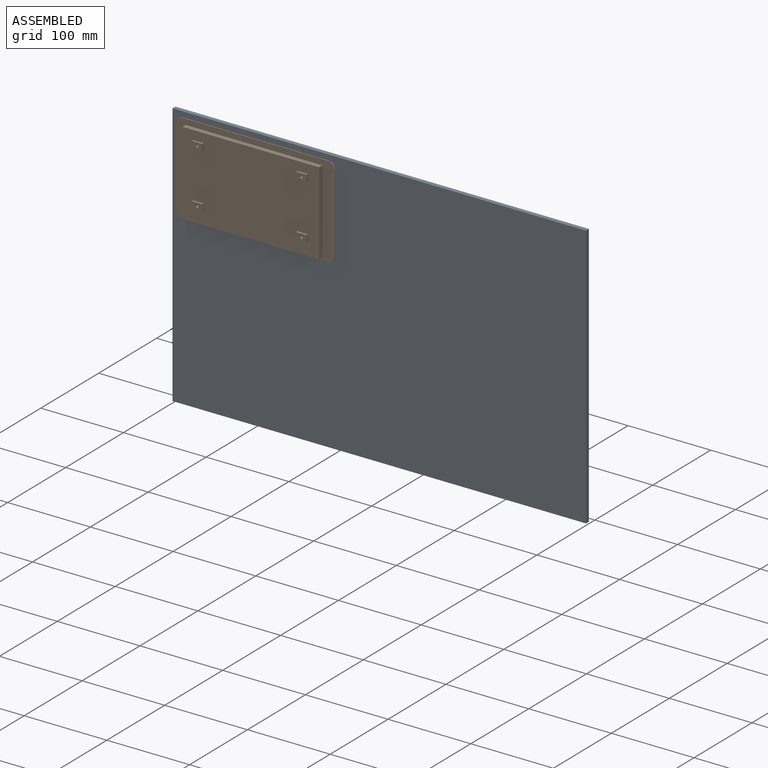
[diagram: assembled view]
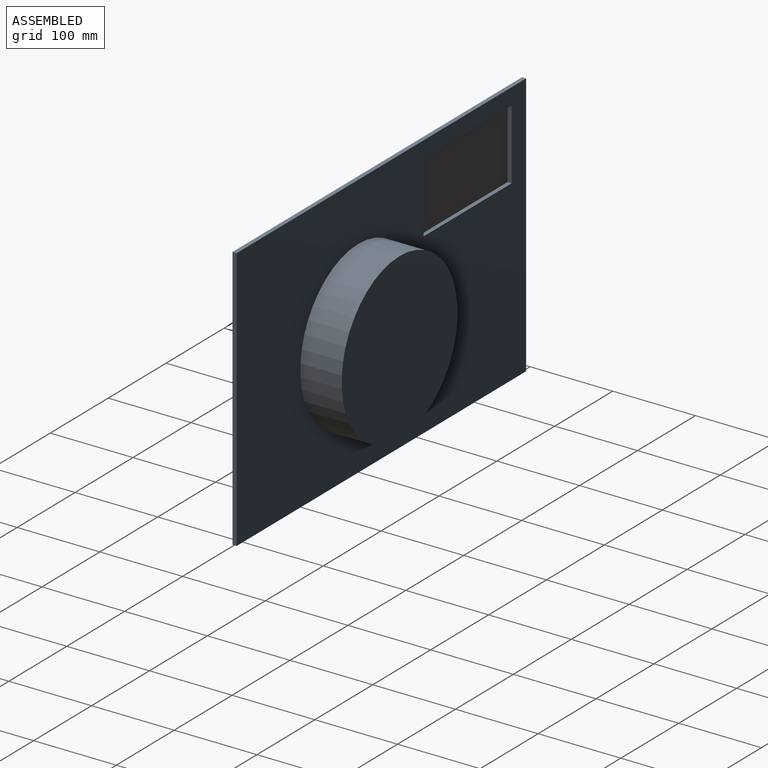
[diagram: assembled view, second angle]
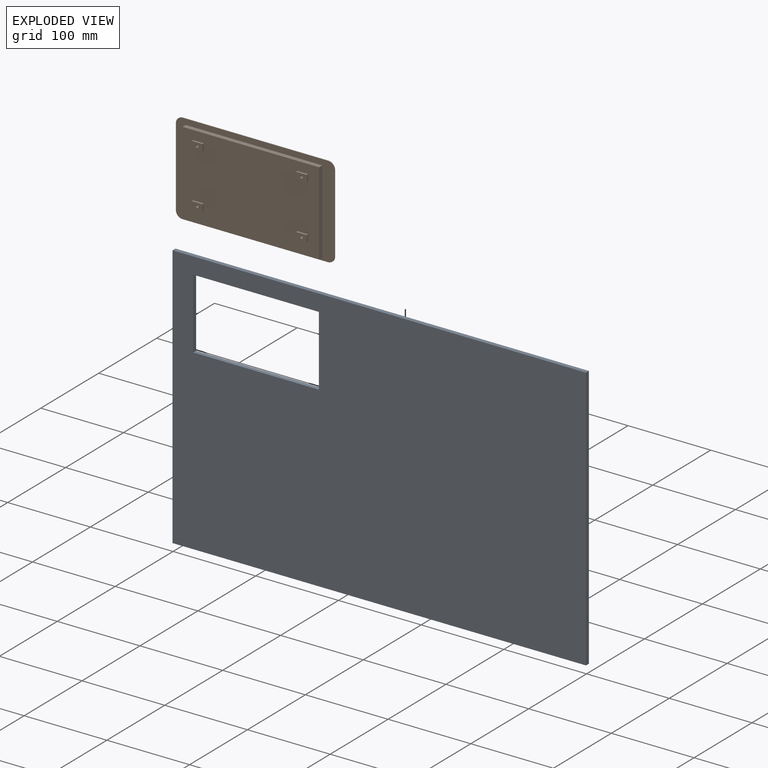
[diagram: exploded view]
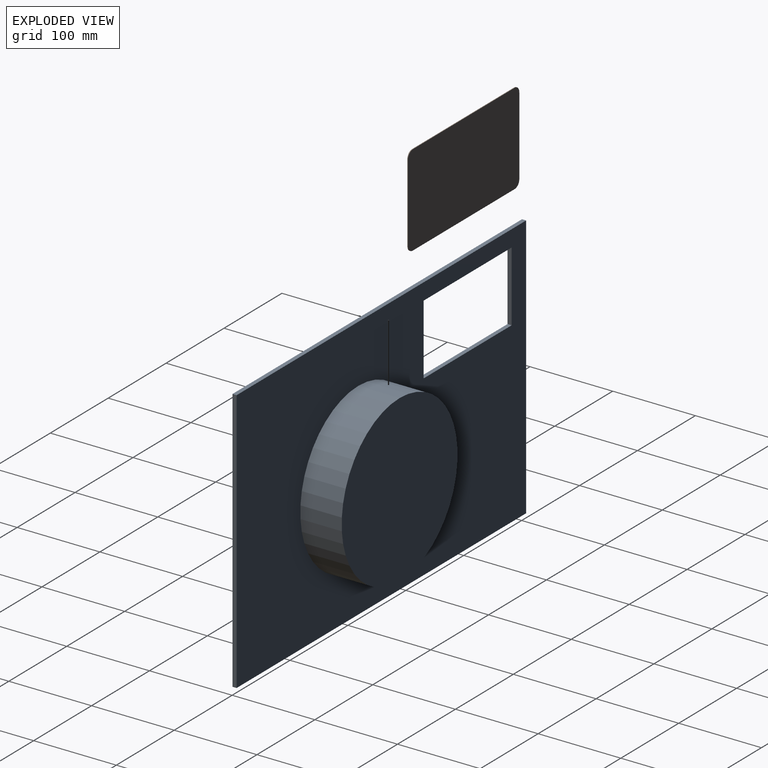
[diagram: exploded view, second angle]
ASSEMBLY  parts=2 mates=2
PART A: 12 faces, bbox 500x55x320 mm
  f0: plane 500x5mm, normal (0,0,1), area 2500mm2, adj f1,f7,f8,f9
  f1: plane 320x5mm, normal (-1,0,0), area 1600mm2, adj f0,f2,f8,f9
  f2: plane 500x5mm, normal (0,0,-1), area 2500mm2, adj f1,f7,f8,f9
  f3: plane 85x5mm, normal (1,0,0), area 425mm2, adj f4,f6,f8,f9
  f4: plane 152x5mm, normal (0,0,-1), area 760mm2, adj f3,f5,f8,f9
  f5: plane 85x5mm, normal (-1,0,0), area 425mm2, adj f4,f6,f8,f9
  f6: plane 152x5mm, normal (0,0,1), area 760mm2, adj f3,f5,f8,f9
  f7: plane 320x5mm, normal (1,0,0), area 1600mm2, adj f0,f2,f8,f9
  f8: plane 500x320mm, normal (0,-1,0), area 115664.1mm2, adj f0,f1,f2,f3,f4,f5,f6,f7
  f9: plane 500x320mm, normal (0,1,0), area 147080mm2, adj f0,f1,f2,f3,f4,f5,f6,f7
  f10: cylinder r=100mm len=200mm, axis (0,1,0), area 31415.9mm2, adj f8,f11
  f11: plane 200x200mm, normal (0,-1,0), area 31415.9mm2, adj f10
PART B: 44 faces, bbox 192x8.8x110.8 mm
  f0: plane 152.71x85.9mm, normal (0,1,0), area 13117.9mm2, adj f11
  f1: plane 165.15x100.7mm, normal (0,-1,0), area 16214.6mm2, adj f12,f13,f14,f15,f16,f17,f18,f19
  f2: plane 192x110.75mm, normal (0,-1,0), area 4578.5mm2, adj f3,f4,f5,f6,f7,f8,f9,f10
  f3: plane 94.75x0.9mm, normal (1,0,0), area 85.3mm2, adj f2,f4,f10,f11
  f4: cylinder r=8mm len=8mm, axis (0,1,0), area 11.3mm2, adj f2,f3,f5,f11
  f5: plane 176x0.9mm, normal (0,0,1), area 158.4mm2, adj f2,f4,f6,f11
  f6: cylinder r=8mm len=8mm, axis (0,1,0), area 11.3mm2, adj f2,f5,f7,f11
  f7: plane 94.75x0.9mm, normal (-1,0,0), area 85.3mm2, adj f2,f6,f8,f11
  f8: cylinder r=8mm len=8mm, axis (0,1,0), area 11.3mm2, adj f2,f7,f9,f11
  f9: plane 176x0.9mm, normal (0,0,-1), area 158.4mm2, adj f2,f8,f10,f11
  f10: cylinder r=8mm len=8mm, axis (0,1,0), area 11.3mm2, adj f2,f3,f9,f11
  f11: plane 192x110.75mm, normal (0,1,0), area 8091.2mm2, adj f0,f3,f4,f5,f6,f7,f8,f9
  f12: plane 100.7x5.5mm, normal (-1,0,0), area 553.9mm2, adj f1,f2,f13,f15
  f13: plane 165.15x5.5mm, normal (0,0,-1), area 908.3mm2, adj f1,f2,f12,f14
  f14: plane 100.7x5.5mm, normal (1,0,0), area 553.9mm2, adj f1,f2,f13,f15
  f15: plane 165.15x5.5mm, normal (0,0,1), area 908.3mm2, adj f1,f2,f12,f14
  f16: plane 8x2.4mm, normal (-1,0,0), area 19.2mm2, adj f1,f17,f19,f20
  f17: plane 13x2.4mm, normal (0,0,-1), area 31.2mm2, adj f1,f16,f18,f20
  f18: plane 8x2.4mm, normal (1,0,0), area 19.2mm2, adj f1,f17,f19,f20
  f19: plane 13x2.4mm, normal (0,0,1), area 31.2mm2, adj f1,f16,f18,f20
  f20: plane 13x8mm, normal (0,-1,0), area 94.9mm2, adj f16,f17,f18,f19,f37
  f21: plane 13x2.4mm, normal (0,0,1), area 31.2mm2, adj f1,f22,f24,f25
  f22: plane 8x2.4mm, normal (-1,0,0), area 19.2mm2, adj f1,f21,f23,f25
  f23: plane 13x2.4mm, normal (0,0,-1), area 31.2mm2, adj f1,f22,f24,f25
  f24: plane 8x2.4mm, normal (1,0,0), area 19.2mm2, adj f1,f21,f23,f25
  f25: plane 13x8mm, normal (0,-1,0), area 94.9mm2, adj f21,f22,f23,f24,f39
  f26: plane 13x2.4mm, normal (0,0,1), area 31.2mm2, adj f1,f27,f29,f30
  f27: plane 8x2.4mm, normal (-1,0,0), area 19.2mm2, adj f1,f26,f28,f30
  f28: plane 13x2.4mm, normal (0,0,-1), area 31.2mm2, adj f1,f27,f29,f30
  f29: plane 8x2.4mm, normal (1,0,0), area 19.2mm2, adj f1,f26,f28,f30
  f30: plane 13x8mm, normal (0,-1,0), area 94.9mm2, adj f26,f27,f28,f29,f41
  f31: plane 13x2.4mm, normal (0,0,1), area 31.2mm2, adj f1,f32,f34,f35
  f32: plane 8x2.4mm, normal (-1,0,0), area 19.2mm2, adj f1,f31,f33,f35
  f33: plane 13x2.4mm, normal (0,0,-1), area 31.2mm2, adj f1,f32,f34,f35
  f34: plane 8x2.4mm, normal (1,0,0), area 19.2mm2, adj f1,f31,f33,f35
  f35: plane 13x8mm, normal (0,-1,0), area 94.9mm2, adj f31,f32,f33,f34,f43
  f36: cone r=0mm half-angle=59deg, axis (0,-1,0), area 10.6mm2, adj f37
  f37: cylinder r=1.7mm len=3.4mm, axis (0,-1,0), area 21.4mm2, adj f20,f36
  f38: cone r=0mm half-angle=59deg, axis (0,-1,0), area 10.6mm2, adj f39
  f39: cylinder r=1.7mm len=3.4mm, axis (0,-1,0), area 21.4mm2, adj f25,f38
  f40: cone r=0mm half-angle=59deg, axis (0,-1,0), area 10.6mm2, adj f41
  f41: cylinder r=1.7mm len=3.4mm, axis (0,-1,0), area 21.4mm2, adj f30,f40
  f42: cone r=0mm half-angle=59deg, axis (0,-1,0), area 10.6mm2, adj f43
  f43: cylinder r=1.7mm len=3.4mm, axis (0,-1,0), area 21.4mm2, adj f35,f42
PLACE A rot(axis=(0,0,-1),180deg) t=(149.36,0,-97.95)mm
PLACE B at identity fixed
MATE planar A.f9 <-> B.f0  axis (0,-1,0) through (162.44,0,-106.51)mm
MATE planar A.f9 <-> B.f0  axis (0,-1,0) through (76.36,0,-42.95)mm
